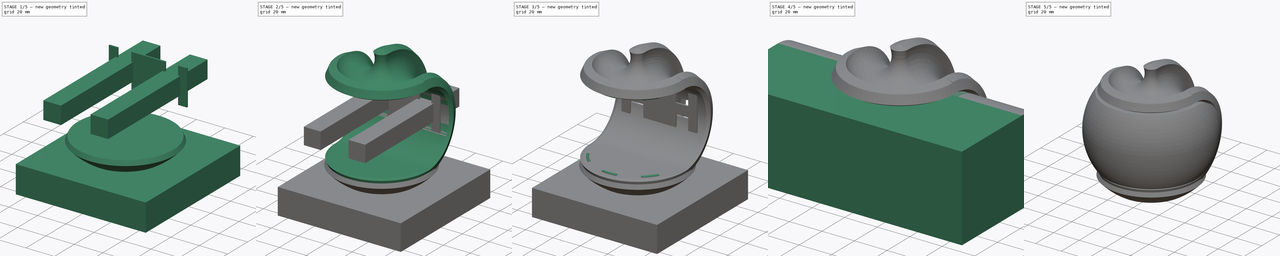
[diagram: build sequence overview — one tinted view per stage of 5, left to right]
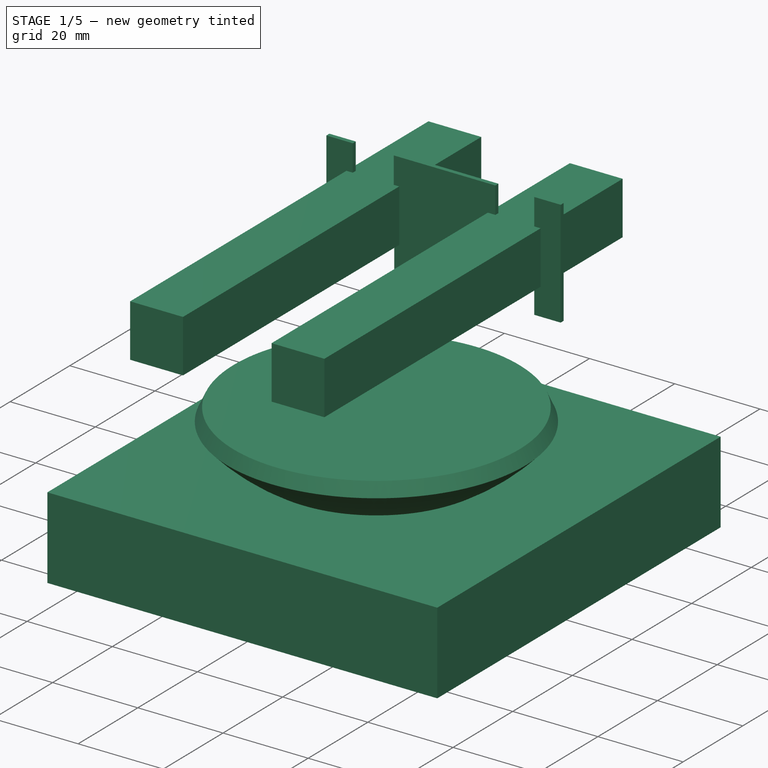
[diagram: stage 1 of 5 — iso view after this stage's code; geometry added in this stage tinted green]
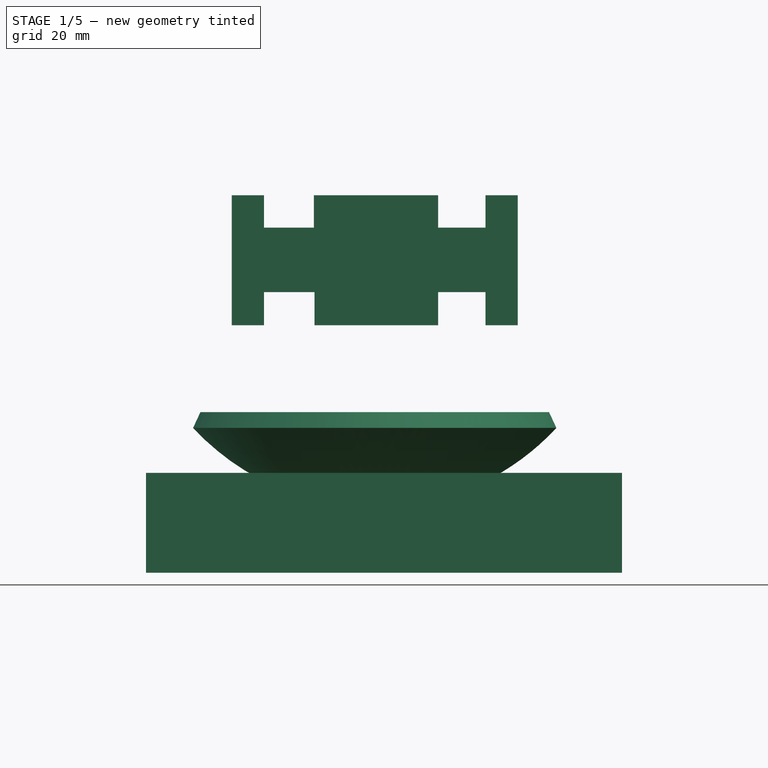
[diagram: stage 1 of 5 — front view after this stage's code; geometry added in this stage tinted green]
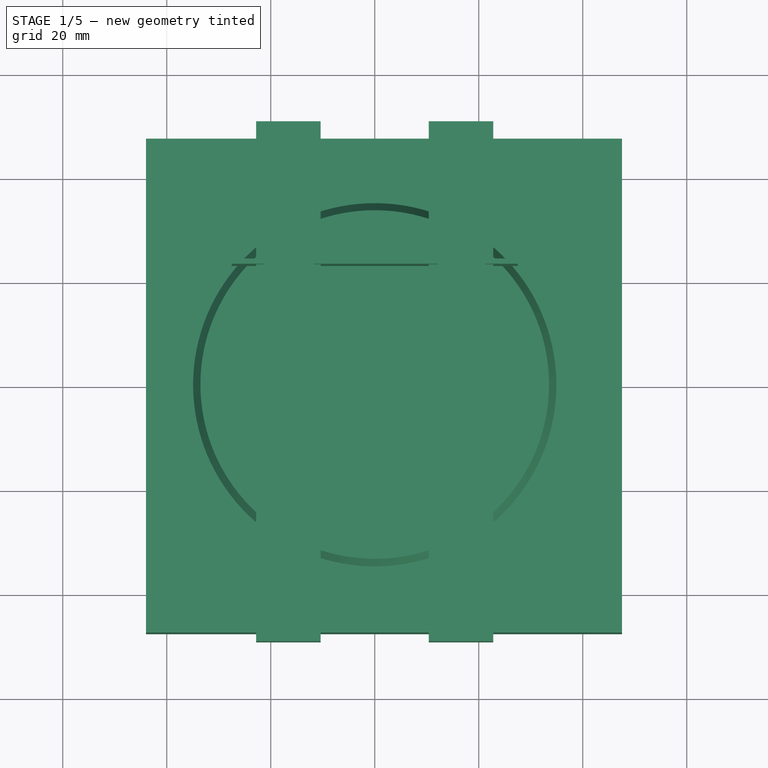
[diagram: stage 1 of 5 — top view after this stage's code; geometry added in this stage tinted green]
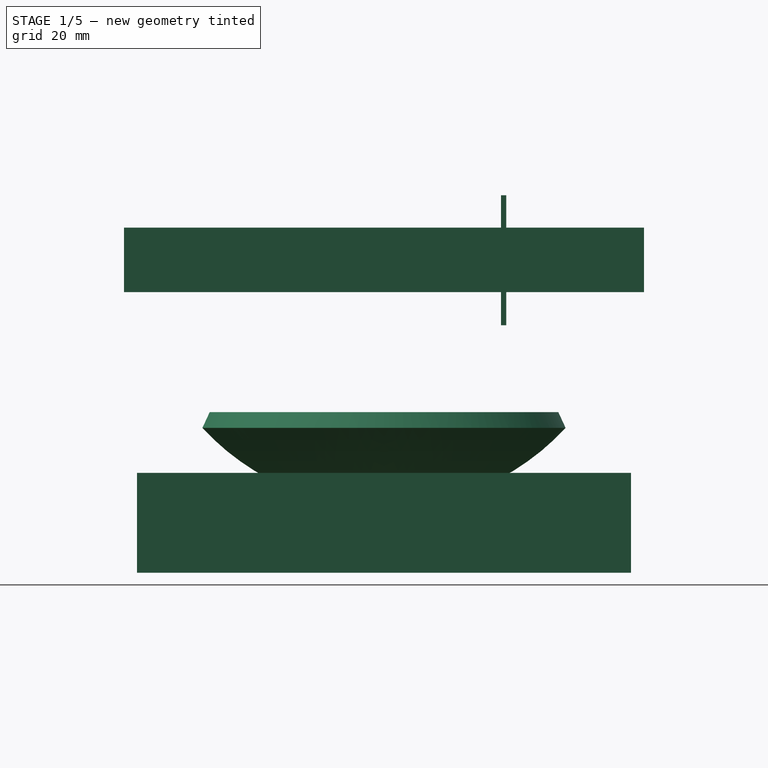
[diagram: stage 1 of 5 — right view after this stage's code; geometry added in this stage tinted green]
FCSTD DOCUMENT  (FreeCAD 0.16R6712 (Git))
Label: mouse2
License: All rights reserved
LicenseURL: http://en.wikipedia.org/wiki/All_rights_reserved
objects: Sketcher::SketchObject×18, PartDesign::Pad×11, PartDesign::Revolution×6, Part::Cut×6, Part::MultiFuse×4, PartDesign::Fillet×2, Part::MultiCommon×1, PartDesign::Chamfer×1, PartDesign::Pocket×1
note: 68 computed .brp shape members not serialized (recipe doc carries the construction recipe); baked Part::Feature solids carry a one-line shape summary decoded from their .brp

FEATURE [Sketcher::SketchObject] Sketch013
  Placement = pos=(0,0,0) rot=(1,0,0;1.5708rad)
  sketch-geometry (4):
    g0: ArcOfCircle CenterX=0 CenterY=0 CenterZ=0 NormalX=0 NormalY=0 NormalZ=1 Radius=47.583 StartAngle=4.92431 EndAngle=5.62078
    g1: LineSegment StartX=0 StartY=-29.2644 StartZ=0 EndX=0 EndY=-46.5186 EndZ=0
    g2: LineSegment StartX=0 StartY=-29.2644 StartZ=0 EndX=37.5199 EndY=-29.2644 EndZ=0
    g3: LineSegment StartX=0 StartY=-46.5186 StartZ=0 EndX=10.0084 EndY=-46.5186 EndZ=0
  constraints (8):
    c: Coincident(g0,g-1)
    c: Vertical(g1)
    c: Horizontal(g2)
    c: Horizontal(g3)
    c: Coincident(g0,g3)
    c: Coincident(g1,g3)
    c: Coincident(g0,g2)
    c: Coincident(g1,g2)
FEATURE [PartDesign::Revolution] Revolution005
  Angle = 360
  Axis = (0,0,1)
  Base = (0,0,0)
  Placement = pos=(0,0,0) rot=(1,0,0;1.5708rad)
  ReferenceAxis = -> Sketch013 [V_Axis]
  Reversed = true
  Sketch = -> Sketch013
FEATURE [PartDesign::Chamfer] Chamfer
  Base = -> Revolution005 [Edge2]
  Placement = pos=(0,0,0) rot=(1,0,0;1.5708rad)
  Size = 4
FEATURE [Sketcher::SketchObject] Sketch014
  Placement = pos=(0,0,0) rot=(1,0,0;1.5708rad)
  sketch-geometry (8):
    g0: LineSegment StartX=-22.7993 StartY=6.2 StartZ=0 EndX=-10.3993 EndY=6.2 EndZ=0
    g1: LineSegment StartX=-10.3993 StartY=6.2 StartZ=0 EndX=-10.3993 EndY=-6.2 EndZ=0
    g2: LineSegment StartX=-10.3993 StartY=-6.2 StartZ=0 EndX=-22.7993 EndY=-6.2 EndZ=0
    g3: LineSegment StartX=-22.7993 StartY=-6.2 StartZ=0 EndX=-22.7993 EndY=6.2 EndZ=0
    g4: LineSegment StartX=10.3993 StartY=6.2 StartZ=0 EndX=22.7993 EndY=6.2 EndZ=0
    g5: LineSegment StartX=22.7993 StartY=6.2 StartZ=0 EndX=22.7993 EndY=-6.2 EndZ=0
    g6: LineSegment StartX=22.7993 StartY=-6.2 StartZ=0 EndX=10.3993 EndY=-6.2 EndZ=0
    g7: LineSegment StartX=10.3993 StartY=-6.2 StartZ=0 EndX=10.3993 EndY=6.2 EndZ=0
  constraints (22):
    c: Coincident(g0,g1)
    c: Coincident(g1,g2)
    c: Coincident(g2,g3)
    c: Coincident(g3,g0)
    c: Horizontal(g0)
    c: Horizontal(g2)
    c: Vertical(g1)
    c: Vertical(g3)
    c: Coincident(g4,g5)
    c: Coincident(g5,g6)
    c: Coincident(g6,g7)
    c: Coincident(g7,g4)
    c: Horizontal(g4)
    c: Horizontal(g6)
    c: Vertical(g5)
    c: Vertical(g7)
    c: Equal(g6,g5)
    c: Equal(g1,g2)
    c: Equal(g0,g7)
    c: DistanceX(g4,g4) = 12.4
    c: Symmetric(g4,g0,g-2)
    c: Symmetric(g0,g1,g-1)
FEATURE [PartDesign::Pad] Pad008
  Length = 100
  Length2 = 100
  Midplane = true
  Placement = pos=(0,0,0) rot=(1,0,0;1.5708rad)
  Sketch = -> Sketch014
  Type = 0
FEATURE [Sketcher::SketchObject] Sketch015
  Placement = pos=(0,0,0) rot=(0.57735,0.57735,0.57735;2.0944rad)
  sketch-geometry (4):
    g0: LineSegment StartX=22.5009 StartY=12.4409 StartZ=0 EndX=23.5009 EndY=12.4409 EndZ=0
    g1: LineSegment StartX=23.5009 StartY=12.4409 StartZ=0 EndX=23.5009 EndY=-12.5591 EndZ=0
    g2: LineSegment StartX=23.5009 StartY=-12.5591 StartZ=0 EndX=22.5009 EndY=-12.5591 EndZ=0
    g3: LineSegment StartX=22.5009 StartY=-12.5591 StartZ=0 EndX=22.5009 EndY=12.4409 EndZ=0
  constraints (10):
    c: Coincident(g0,g1)
    c: Coincident(g1,g2)
    c: Coincident(g2,g3)
    c: Coincident(g3,g0)
    c: Horizontal(g0)
    c: Horizontal(g2)
    c: Vertical(g1)
    c: Vertical(g3)
    c: DistanceX(g2,g2) = 1
    c: DistanceY(g1,g0) = 25
FEATURE [PartDesign::Pad] Pad009
  Length = 55
  Length2 = 100
  Midplane = true
  Placement = pos=(0,0,0) rot=(0.57735,0.57735,0.57735;2.0944rad)
  Sketch = -> Sketch015
  Type = 0
FEATURE [Sketcher::SketchObject] Sketch016
  Placement = pos=(0,22.5009,0) rot=(0.57735,0.57735,-0.57735;2.0944rad)
  Support = -> Pad009 [Face4]
  sketch-geometry (16):
    g0: LineSegment StartX=-17.205 StartY=21.3046 StartZ=0 EndX=-3.69905 EndY=21.3046 EndZ=0
    g1: LineSegment StartX=-3.69905 StartY=21.3046 StartZ=0 EndX=-3.69905 EndY=12.1789 EndZ=0
    g2: LineSegment StartX=-3.69905 StartY=12.1789 StartZ=0 EndX=-17.205 EndY=12.1789 EndZ=0
    g3: LineSegment StartX=-17.205 StartY=12.1789 StartZ=0 EndX=-17.205 EndY=21.3046 EndZ=0
    g4: LineSegment StartX=17.205 StartY=21.3046 StartZ=0 EndX=3.69905 EndY=21.3046 EndZ=0
    g5: LineSegment StartX=3.69905 StartY=21.3046 StartZ=0 EndX=3.69905 EndY=12.1789 EndZ=0
    g6: LineSegment StartX=3.69905 StartY=12.1789 StartZ=0 EndX=17.205 EndY=12.1789 EndZ=0
    g7: LineSegment StartX=17.205 StartY=12.1789 StartZ=0 EndX=17.205 EndY=21.3046 EndZ=0
    g8: LineSegment StartX=-17.0833 StartY=-21.3046 StartZ=0 EndX=-3.57737 EndY=-21.3046 EndZ=0
    g9: LineSegment StartX=-3.57737 StartY=-21.3046 StartZ=0 EndX=-3.57737 EndY=-11.6922 EndZ=0
    g10: LineSegment StartX=-3.57737 StartY=-11.6922 StartZ=0 EndX=-17.0833 EndY=-11.6922 EndZ=0
    g11: LineSegment StartX=-17.0833 StartY=-11.6922 StartZ=0 EndX=-17.0833 EndY=-21.3046 EndZ=0
    g12: LineSegment StartX=17.205 StartY=-21.3046 StartZ=0 EndX=3.69905 EndY=-21.3046 EndZ=0
    g13: LineSegment StartX=3.69905 StartY=-21.3046 StartZ=0 EndX=3.69905 EndY=-11.5706 EndZ=0
    g14: LineSegment StartX=3.69905 StartY=-11.5706 StartZ=0 EndX=17.205 EndY=-11.5706 EndZ=0
    g15: LineSegment StartX=17.205 StartY=-11.5706 StartZ=0 EndX=17.205 EndY=-21.3046 EndZ=0
  constraints (32):
    c: Coincident(g0,g1)
    c: Coincident(g1,g2)
    c: Coincident(g2,g3)
    c: Coincident(g3,g0)
    c: Horizontal(g0)
    c: Horizontal(g2)
    c: Vertical(g1)
    c: Vertical(g3)
    c: Coincident(g4,g5)
    c: Coincident(g5,g6)
    c: Coincident(g6,g7)
    c: Coincident(g7,g4)
    c: Horizontal(g4)
    c: Horizontal(g6)
    c: Vertical(g5)
    c: Vertical(g7)
    c: Coincident(g8,g9)
    c: Coincident(g9,g10)
    c: Coincident(g10,g11)
    c: Coincident(g11,g8)
    c: Horizontal(g8)
    c: Horizontal(g10)
    c: Vertical(g9)
    c: Vertical(g11)
    c: Coincident(g12,g13)
    c: Coincident(g13,g14)
    c: Coincident(g14,g15)
    c: Coincident(g15,g12)
    c: Horizontal(g12)
    c: Horizontal(g14)
    c: Vertical(g13)
    c: Vertical(g15)
FEATURE [PartDesign::Pocket] Pocket
  Length = 5
  Placement = pos=(0,0,0) rot=(0.57735,0.57735,0.57735;2.0944rad)
  Sketch = -> Sketch016
  Type = 0
FEATURE [Sketcher::SketchObject] Sketch017
  Placement = pos=(0,0,0) rot=(-1,0,0;4.71239rad)
  sketch-geometry (4):
    g0: LineSegment StartX=-43.9816 StartY=-40.948 StartZ=0 EndX=47.5463 EndY=-40.948 EndZ=0
    g1: LineSegment StartX=47.5463 StartY=-40.948 StartZ=0 EndX=47.5463 EndY=-60.1743 EndZ=0
    g2: LineSegment StartX=47.5463 StartY=-60.1743 StartZ=0 EndX=-43.9816 EndY=-60.1743 EndZ=0
    g3: LineSegment StartX=-43.9816 StartY=-60.1743 StartZ=0 EndX=-43.9816 EndY=-40.948 EndZ=0
  constraints (8):
    c: Coincident(g0,g1)
    c: Coincident(g1,g2)
    c: Coincident(g2,g3)
    c: Coincident(g3,g0)
    c: Horizontal(g0)
    c: Horizontal(g2)
    c: Vertical(g1)
    c: Vertical(g3)
FEATURE [PartDesign::Pad] Pad010
  Length = 95
  Length2 = 100
  Midplane = true
  Placement = pos=(0,0,0) rot=(-1,0,0;4.71239rad)
  Sketch = -> Sketch017
  Type = 0
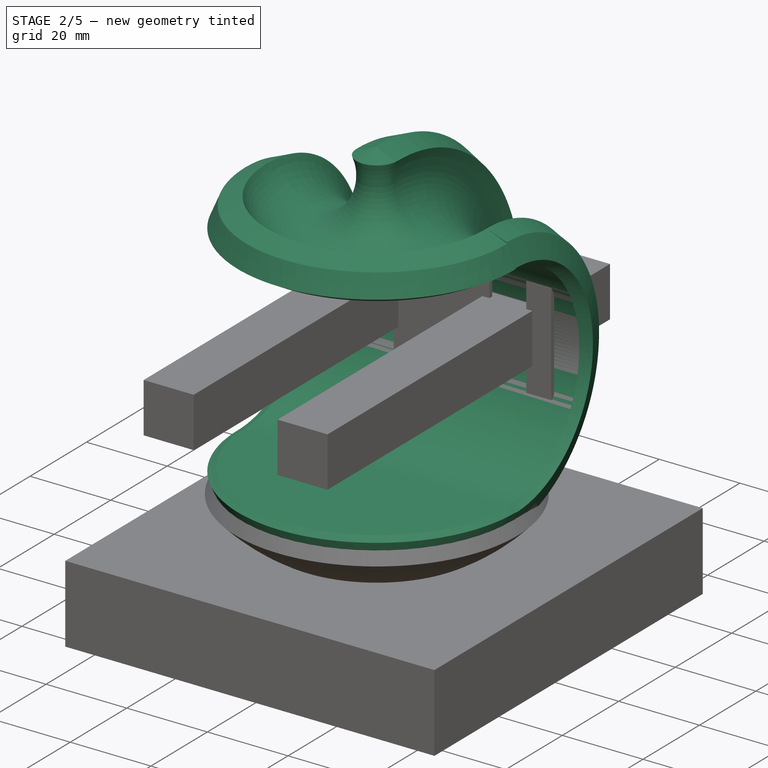
[diagram: stage 2 of 5 — iso view after this stage's code; geometry added in this stage tinted green]
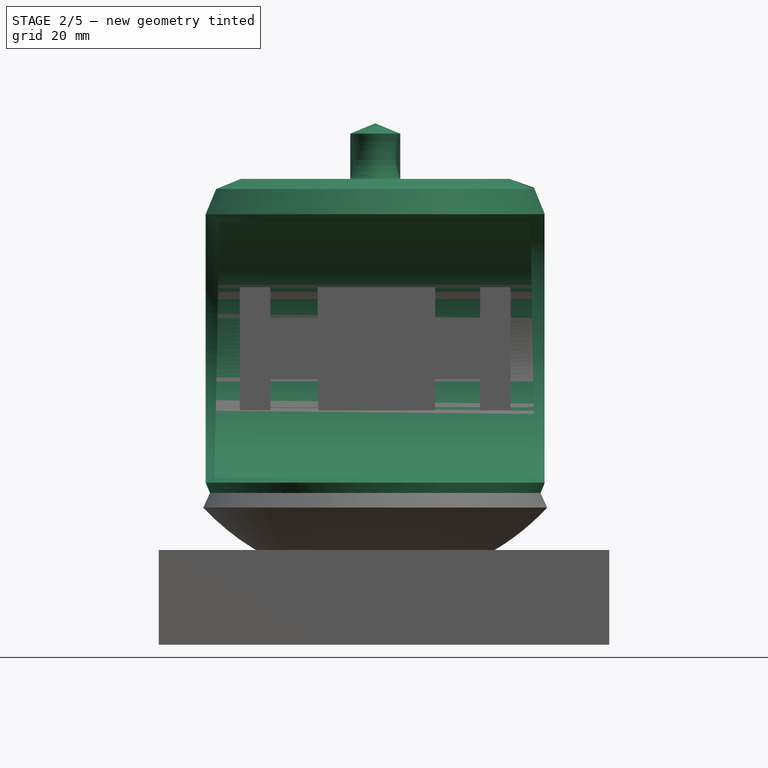
[diagram: stage 2 of 5 — front view after this stage's code; geometry added in this stage tinted green]
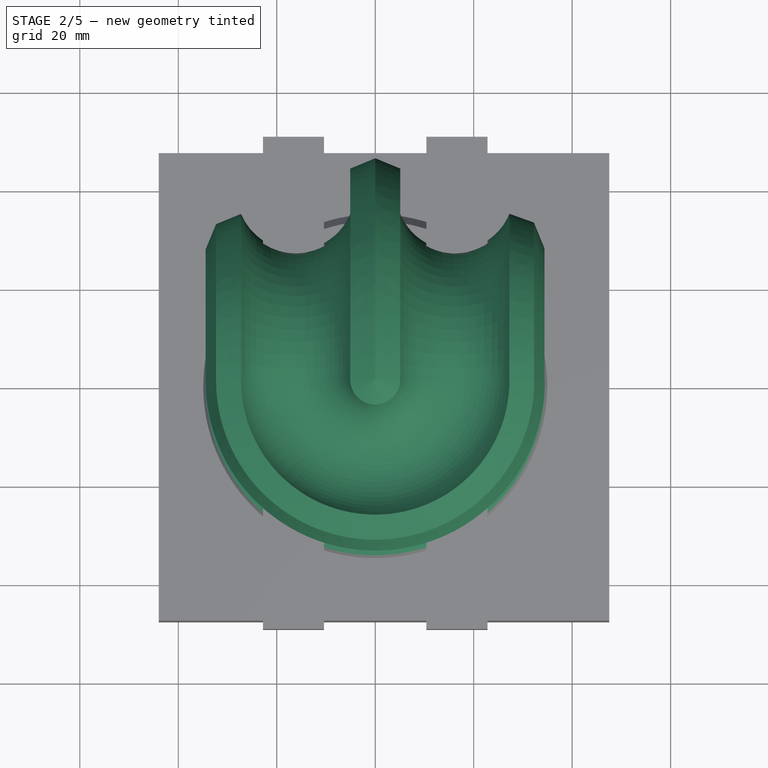
[diagram: stage 2 of 5 — top view after this stage's code; geometry added in this stage tinted green]
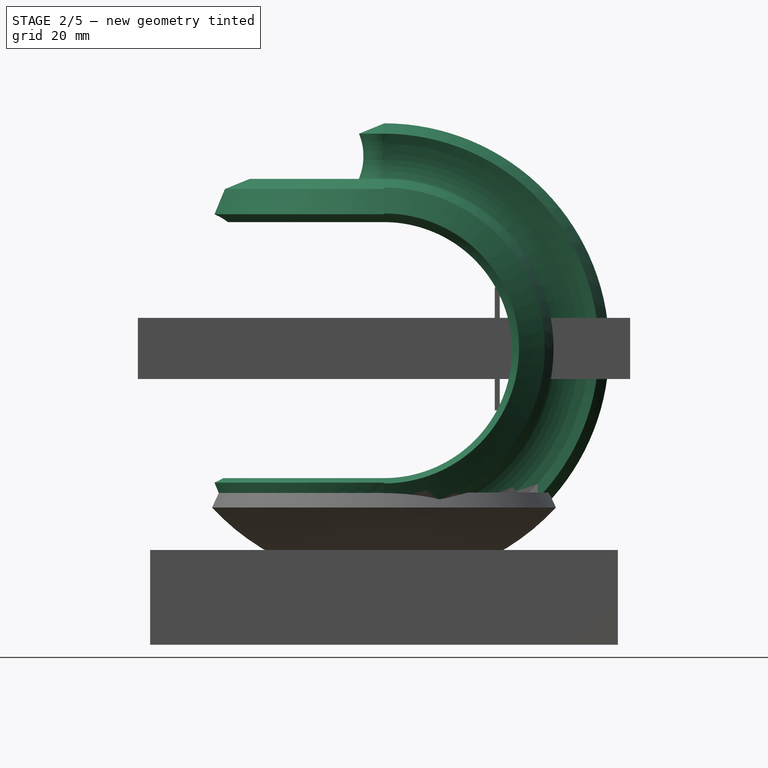
[diagram: stage 2 of 5 — right view after this stage's code; geometry added in this stage tinted green]
FEATURE [Sketcher::SketchObject] Sketch007
  Placement = pos=(0,0,0) rot=(1,0,0;1.5708rad)
  sketch-geometry (13):
    g0: LineSegment StartX=-45.7299 StartY=-9.97052e-05 StartZ=0 EndX=-43.625 EndY=-5.08134 EndZ=0
    g1: LineSegment StartX=-32.3357 StartY=-32.3328 StartZ=0 EndX=-27.2478 EndY=-34.4379 EndZ=0
    g2: ArcOfCircle CenterX=-39.0327 CenterY=16.1679 CenterZ=0 NormalX=0 NormalY=0 NormalZ=1 Radius=12 StartAngle=4.31969 EndAngle=7.46128
    g3: ArcOfCircle CenterX=-39.0328 CenterY=-16.1678 CenterZ=0 NormalX=0 NormalY=0 NormalZ=1 Radius=11.9999 StartAngle=5.10517 EndAngle=8.24668
    g4: ArcOfCircle CenterX=-16.1726 CenterY=-39.0323 CenterZ=0 NormalX=0 NormalY=0 NormalZ=1 Radius=11.9903 StartAngle=5.89182 EndAngle=9.03154
    g5: LineSegment StartX=0 StartY=45.6969 StartZ=0 EndX=-5.06214 EndY=43.6285 EndZ=0
    g6: LineSegment StartX=-32.3229 StartY=32.3788 StartZ=0 EndX=-27.2599 EndY=34.4451 EndZ=0
    g7: LineSegment StartX=-34.4405 StartY=27.2544 StartZ=0 EndX=-32.3229 EndY=32.3788 EndZ=0
    g8: LineSegment StartX=-43.6249 StartY=5.08134 StartZ=0 EndX=-45.7299 EndY=-9.97052e-05 EndZ=0
    g9: LineSegment StartX=-34.4397 StartY=-27.2539 StartZ=0 EndX=-32.3357 EndY=-32.3328 EndZ=0
    g10: LineSegment StartX=-5.0889 StartY=-43.6061 StartZ=0 EndX=0 EndY=-45.7116 EndZ=0
    g11: LineSegment StartX=0 StartY=45.6969 StartZ=0 EndX=0 EndY=-45.7116 EndZ=0
    g12: ArcOfCircle CenterX=-16.1811 CenterY=39.0854 CenterZ=0 NormalX=0 NormalY=0 NormalZ=1 Radius=12.0113 StartAngle=3.53823 EndAngle=6.67108
  constraints (24):
    c: Coincident(g7,g2)
    c: Coincident(g7,g6)
    c: Coincident(g8,g2)
    c: Coincident(g8,g0)
    c: PointOnObject(g0,g3)
    c: PointOnObject(g9,g3)
    c: Tangent(g0,g9)
    c: PointOnObject(g1,g4)
    c: PointOnObject(g10,g4)
    c: Tangent(g1,g10)
    c: Coincident(g0,g3)
    c: Coincident(g3,g9)
    c: Coincident(g1,g9)
    c: Coincident(g1,g4)
    c: Coincident(g4,g10)
    c: Coincident(g11,g5)
    c: Coincident(g11,g10)
    c: Vertical(g11)
    c: Coincident(g12,g6)
    c: Coincident(g12,g5)
    c: Equal(g6,g5)
    c: Radius(g2) = 12
    c: PointOnObject(g5,g-2)
    c: Perpendicular(g12,g5)
FEATURE [Sketcher::SketchObject] Sketch008
  Placement = pos=(0,0,0) rot=(0.57735,0.57735,-0.57735;2.0944rad)
  sketch-geometry (13):
    g0: LineSegment StartX=-45.7299 StartY=-9.97052e-05 StartZ=0 EndX=-43.625 EndY=-5.08134 EndZ=0
    g1: LineSegment StartX=-32.3357 StartY=-32.3328 StartZ=0 EndX=-27.2478 EndY=-34.4379 EndZ=0
    g2: ArcOfCircle CenterX=-39.0327 CenterY=16.1679 CenterZ=0 NormalX=0 NormalY=0 NormalZ=1 Radius=12 StartAngle=4.31969 EndAngle=7.46128
    g3: ArcOfCircle CenterX=-39.0328 CenterY=-16.1678 CenterZ=0 NormalX=0 NormalY=0 NormalZ=1 Radius=11.9999 StartAngle=5.10517 EndAngle=8.24668
    g4: ArcOfCircle CenterX=-16.1726 CenterY=-39.0323 CenterZ=0 NormalX=0 NormalY=0 NormalZ=1 Radius=11.9903 StartAngle=5.89182 EndAngle=9.03154
    g5: LineSegment StartX=0 StartY=45.7139 StartZ=0 EndX=-5.28125 EndY=43.6461 EndZ=0
    g6: LineSegment StartX=-32.6654 StartY=32.2385 StartZ=0 EndX=-27.4173 EndY=34.389 EndZ=0
    g7: LineSegment StartX=-34.4405 StartY=27.2544 StartZ=0 EndX=-32.6654 EndY=32.2385 EndZ=0
    g8: LineSegment StartX=-43.6249 StartY=5.08134 StartZ=0 EndX=-45.7299 EndY=-9.97052e-05 EndZ=0
    g9: LineSegment StartX=-34.4397 StartY=-27.2539 StartZ=0 EndX=-32.3357 EndY=-32.3328 EndZ=0
    g10: LineSegment StartX=-5.0889 StartY=-43.6061 StartZ=0 EndX=0 EndY=-45.7116 EndZ=0
    g11: LineSegment StartX=0 StartY=45.7139 StartZ=0 EndX=0 EndY=-45.7116 EndZ=0
    g12: ArcOfCircle CenterX=-16.4553 CenterY=39.2712 CenterZ=0 NormalX=0 NormalY=0 NormalZ=1 Radius=12 StartAngle=3.56059 EndAngle=6.65637
  constraints (25):
    c: Coincident(g7,g2)
    c: Coincident(g7,g6)
    c: Coincident(g8,g2)
    c: Coincident(g8,g0)
    c: PointOnObject(g0,g3)
    c: PointOnObject(g9,g3)
    c: Tangent(g0,g9)
    c: PointOnObject(g1,g4)
    c: PointOnObject(g10,g4)
    c: Tangent(g1,g10)
    c: Coincident(g0,g3)
    c: Coincident(g3,g9)
    c: Coincident(g1,g9)
    c: Coincident(g1,g4)
    c: Coincident(g4,g10)
    c: Coincident(g11,g5)
    c: Coincident(g11,g10)
    c: Vertical(g11)
    c: Coincident(g12,g6)
    c: Coincident(g12,g5)
    c: Equal(g6,g5)
    c: Radius(g12) = 12
    c: Radius(g2) = 12
    c: PointOnObject(g5,g-2)
    c: Perpendicular(g12,g5)
FEATURE [PartDesign::Revolution] Revolution003
  Angle = 180
  Axis = (1,0,0)
  Base = (0,0,0)
  Placement = pos=(0,0,0) rot=(0.57735,0.57735,-0.57735;2.0944rad)
  ReferenceAxis = -> Sketch008 [V_Axis]
  Reversed = true
  Sketch = -> Sketch008
FEATURE [Sketcher::SketchObject] Sketch009
  Placement = pos=(0,0,0) rot=(0.57735,0.57735,0.57735;2.0944rad)
  sketch-geometry (4):
    g0: LineSegment StartX=-0.0102916 StartY=25.6633 StartZ=0 EndX=-52.71 EndY=25.6633 EndZ=0
    g1: LineSegment StartX=-0.0103038 StartY=-26.3367 StartZ=0 EndX=-52.71 EndY=-26.3367 EndZ=0
    g2: LineSegment StartX=-52.71 StartY=25.6633 StartZ=0 EndX=-52.71 EndY=-26.3367 EndZ=0
    g3: ArcOfCircle CenterX=-0.0103043 CenterY=-0.33667 CenterZ=0 NormalX=0 NormalY=0 NormalZ=1 Radius=26 StartAngle=4.71239 EndAngle=7.85398
  constraints (10):
    c: Horizontal(g0)
    c: Horizontal(g1)
    c: Coincident(g2,g0)
    c: Coincident(g2,g1)
    c: Vertical(g2)
    c: Coincident(g3,g0)
    c: Coincident(g3,g1)
    c: Tangent(g3,g1)
    c: Tangent(g3,g0)
    c: Radius(g3) = 26
FEATURE [PartDesign::Pad] Pad004
  Length = 150
  Length2 = 100
  Midplane = true
  Placement = pos=(0,0,0) rot=(0.57735,0.57735,0.57735;2.0944rad)
  Sketch = -> Sketch009
  Type = 0
FEATURE [Sketcher::SketchObject] Sketch010
  Placement = pos=(0,0,0) rot=(0.57735,0.57735,0.57735;2.0944rad)
  sketch-geometry (4):
    g0: LineSegment StartX=-0.0102979 StartY=25.6633 StartZ=0 EndX=-100 EndY=25.6633 EndZ=0
    g1: LineSegment StartX=-0.0103041 StartY=-26.3367 StartZ=0 EndX=-100 EndY=-26.3367 EndZ=0
    g2: LineSegment StartX=-100 StartY=25.6633 StartZ=0 EndX=-100 EndY=-26.3367 EndZ=0
    g3: ArcOfCircle CenterX=-0.0103043 CenterY=-0.33667 CenterZ=0 NormalX=0 NormalY=0 NormalZ=1 Radius=26 StartAngle=4.71239 EndAngle=7.85398
  constraints (11):
    c: Horizontal(g0)
    c: Horizontal(g1)
    c: Coincident(g2,g0)
    c: Coincident(g2,g1)
    c: Vertical(g2)
    c: Coincident(g3,g0)
    c: Coincident(g3,g1)
    c: Tangent(g3,g1)
    c: Tangent(g3,g0)
    c: Radius(g3) = 26
    c: DistanceX(g0,g-1) = 100
FEATURE [PartDesign::Pad] Pad005
  Length = 150
  Length2 = 100
  Midplane = true
  Placement = pos=(0,0,0) rot=(0.57735,0.57735,0.57735;2.0944rad)
  Sketch = -> Sketch010
  Type = 0
FEATURE [PartDesign::Revolution] Revolution004
  Angle = 180
  Axis = (0,0,1)
  Base = (0,0,0)
  Placement = pos=(0,0,0) rot=(1,0,0;1.5708rad)
  ReferenceAxis = -> Sketch007 [V_Axis]
  Sketch = -> Sketch007
FEATURE [Part::Cut] Cut002
  Base = -> Revolution004
  Tool = -> Pad005
FEATURE [Part::Cut] Cut003
  Base = -> Revolution003
  Tool = -> Pad004
FEATURE [Part::MultiFuse] Fusion001
  Shapes = -> [Cut003,Cut002]
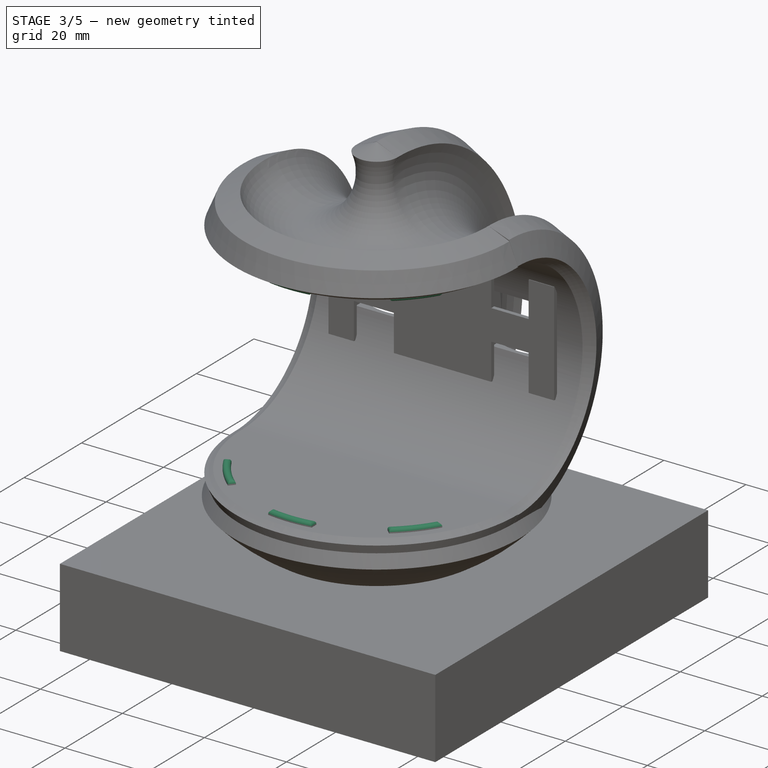
[diagram: stage 3 of 5 — iso view after this stage's code; geometry added in this stage tinted green]
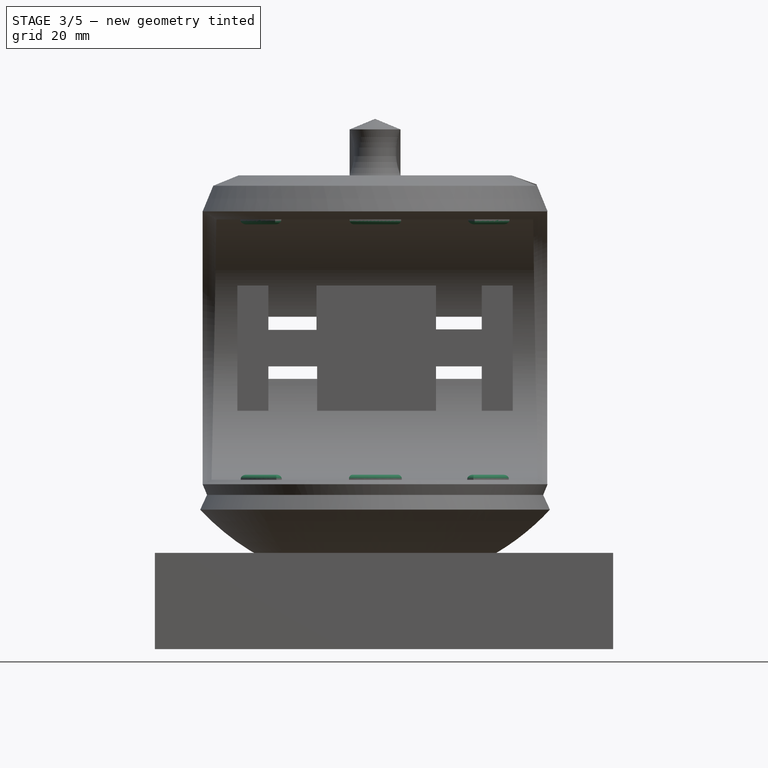
[diagram: stage 3 of 5 — front view after this stage's code; geometry added in this stage tinted green]
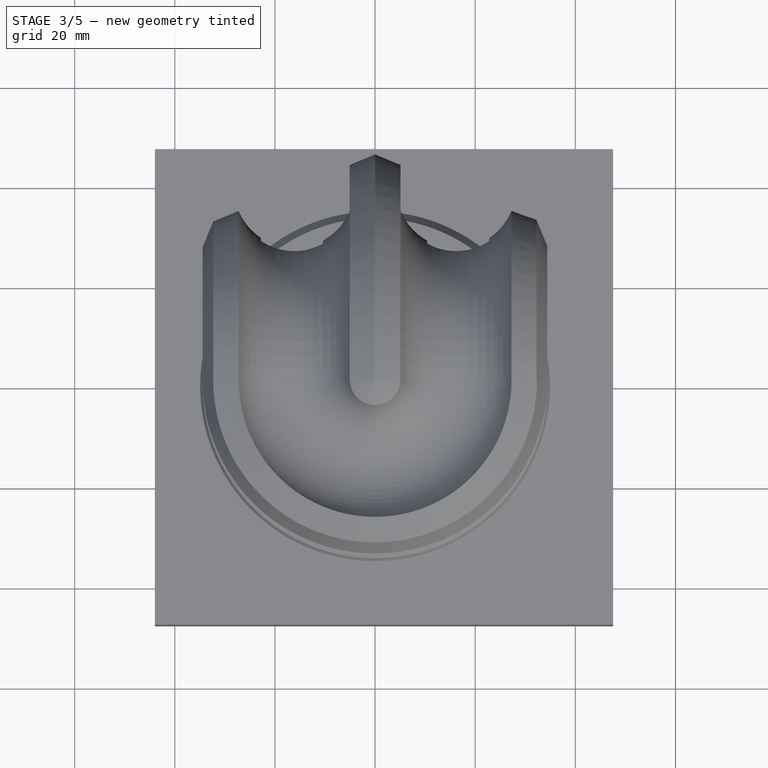
[diagram: stage 3 of 5 — top view after this stage's code; geometry added in this stage tinted green]
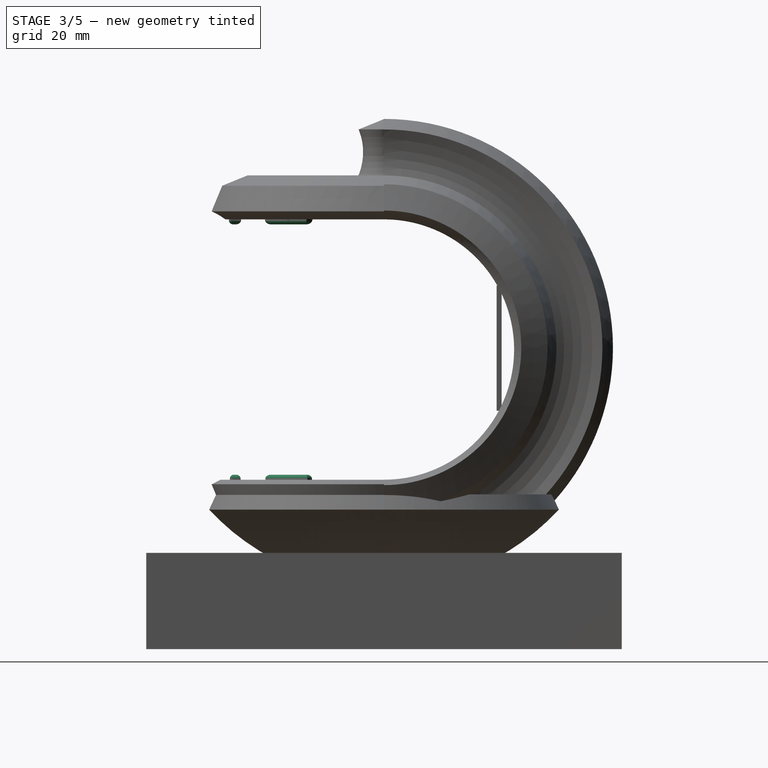
[diagram: stage 3 of 5 — right view after this stage's code; geometry added in this stage tinted green]
FEATURE [Sketcher::SketchObject] Sketch011
  Placement = pos=(0,0,25.6633) rot=(1,0,0;3.14159rad)
  Support = -> Fusion001 [Face43]
  sketch-geometry (12):
    g0: ArcOfCircle CenterX=0 CenterY=0 CenterZ=0 NormalX=0 NormalY=0 NormalZ=1 Radius=29 StartAngle=2.27316 EndAngle=2.62545
    g1: ArcOfCircle CenterX=0 CenterY=0 CenterZ=0 NormalX=0 NormalY=0 NormalZ=1 Radius=31 StartAngle=2.27017 EndAngle=2.62166
    g2: LineSegment StartX=-26.9035 StartY=15.4014 StartZ=0 EndX=-25.2221 EndY=14.3124 EndZ=0
    g3: LineSegment StartX=-19.956 StartY=23.7225 StartZ=0 EndX=-18.7348 EndY=22.1361 EndZ=0
    g4: LineSegment StartX=-5.11284 StartY=30.5755 StartZ=0 EndX=-5.11284 EndY=28.5457 EndZ=0
    g5: LineSegment StartX=26.8629 StartY=15.4721 StartZ=0 EndX=25.0785 EndY=14.5626 EndZ=0
    g6: LineSegment StartX=19.8925 StartY=23.7758 StartZ=0 EndX=18.5975 EndY=22.2516 EndZ=0
    g7: LineSegment StartX=5.2116 StartY=30.5588 StartZ=0 EndX=5.2116 EndY=28.5279 EndZ=0
    g8: ArcOfCircle CenterX=0 CenterY=0 CenterZ=0 NormalX=0 NormalY=0 NormalZ=1 Radius=31 StartAngle=1.40188 EndAngle=1.73648
    g9: ArcOfCircle CenterX=0 CenterY=0 CenterZ=0 NormalX=0 NormalY=0 NormalZ=1 Radius=29 StartAngle=1.3901 EndAngle=1.74803
    g10: ArcOfCircle CenterX=0 CenterY=0 CenterZ=0 NormalX=0 NormalY=0 NormalZ=1 Radius=29 StartAngle=0.526092 EndAngle=0.874616
    g11: ArcOfCircle CenterX=0 CenterY=0 CenterZ=0 NormalX=0 NormalY=0 NormalZ=1 Radius=31 StartAngle=0.52256 EndAngle=0.874092
  constraints (26):
    c: Coincident(g0,g-1)
    c: Coincident(g1,g-1)
    c: Radius(g1) = 31
    c: Radius(g0) = 29
    c: Vertical(g7)
    c: Vertical(g4)
    c: Coincident(g1,g3)
    c: Coincident(g8,g4)
    c: Coincident(g0,g3)
    c: Coincident(g9,g4)
    c: Equal(g1,g8)
    c: Coincident(g11,g6)
    c: Coincident(g8,g7)
    c: Coincident(g1,g8)
    c: Equal(g0,g9)
    c: Coincident(g10,g6)
    c: Coincident(g9,g7)
    c: Coincident(g0,g9)
    c: Equal(g0,g10)
    c: Coincident(g0,g2)
    c: Coincident(g10,g5)
    c: Coincident(g0,g10)
    c: Equal(g1,g11)
    c: Coincident(g1,g2)
    c: Coincident(g11,g5)
    c: Coincident(g1,g11)
FEATURE [PartDesign::Pad] Pad006
  Length = 1
  Length2 = 100
  Sketch = -> Sketch011
  Type = 0
FEATURE [Sketcher::SketchObject] Sketch012
  Placement = pos=(0,0,-26.3367) rot=(0,0,1;0rad)
  Support = -> Pad006 [Face39]
  sketch-geometry (12):
    g0: ArcOfCircle CenterX=0 CenterY=0 CenterZ=0 NormalX=0 NormalY=0 NormalZ=1 Radius=29.1198 StartAngle=3.65801 EndAngle=4.01755
    g1: ArcOfCircle CenterX=0 CenterY=0 CenterZ=0 NormalX=0 NormalY=0 NormalZ=1 Radius=30.7827 StartAngle=3.65422 EndAngle=4.01778
    g2: LineSegment StartX=-5.21595 StartY=-28.6489 StartZ=0 EndX=-5.21595 EndY=-30.3376 EndZ=0
    g3: LineSegment StartX=5.33457 StartY=-28.627 StartZ=0 EndX=5.33457 EndY=-30.317 EndZ=0
    g4: LineSegment StartX=18.4171 StartY=-22.556 StartZ=0 EndX=19.644 EndY=-23.7 EndZ=0
    g5: LineSegment StartX=25.1678 StartY=-14.6473 StartZ=0 EndX=26.7097 EndY=-15.3026 EndZ=0
    g6: LineSegment StartX=-18.6443 StartY=-22.3686 StartZ=0 EndX=-19.7035 EndY=-23.6506 EndZ=0
    g7: LineSegment StartX=-25.3223 StartY=-14.3785 StartZ=0 EndX=-26.8259 EndY=-15.098 EndZ=0
    g8: ArcOfCircle CenterX=0 CenterY=0 CenterZ=0 NormalX=0 NormalY=0 NormalZ=1 Radius=29.1198 StartAngle=4.5323 EndAngle=4.89662
    g9: ArcOfCircle CenterX=0 CenterY=0 CenterZ=0 NormalX=0 NormalY=0 NormalZ=1 Radius=30.7827 StartAngle=4.54212 EndAngle=4.88657
    g10: ArcOfCircle CenterX=0 CenterY=0 CenterZ=0 NormalX=0 NormalY=0 NormalZ=1 Radius=29.1198 StartAngle=5.39711 EndAngle=5.75612
    g11: ArcOfCircle CenterX=0 CenterY=0 CenterZ=0 NormalX=0 NormalY=0 NormalZ=1 Radius=30.7827 StartAngle=5.40448 EndAngle=5.76291
  constraints (28):
    c: Coincident(g0,g-1)
    c: Coincident(g1,g-1)
    c: Vertical(g2)
    c: PointOnObject(g3,g0)
    c: PointOnObject(g3,g1)
    c: Vertical(g3)
    c: PointOnObject(g4,g0)
    c: PointOnObject(g4,g1)
    c: Coincident(g1,g7)
    c: Coincident(g11,g5)
    c: Coincident(g0,g7)
    c: Coincident(g10,g5)
    c: Equal(g0,g8)
    c: Coincident(g0,g6)
    c: Coincident(g8,g2)
    c: Coincident(g0,g8)
    c: Equal(g1,g9)
    c: Coincident(g1,g6)
    c: Coincident(g9,g2)
    c: Coincident(g1,g9)
    c: Equal(g8,g10)
    c: PointOnObject(g8,g3)
    c: PointOnObject(g10,g4)
    c: Coincident(g8,g10)
    c: Equal(g9,g11)
    c: PointOnObject(g9,g3)
    c: PointOnObject(g11,g4)
    c: Coincident(g9,g11)
FEATURE [PartDesign::Pad] Pad007
  Length = 1
  Length2 = 100
  Sketch = -> Sketch012
  Type = 0
FEATURE [PartDesign::Fillet] Fillet
  Base = -> Pad007 [Edge165,Edge164,Edge161,Edge159,Edge173,Edge167,Edge170,Edge172,Edge181,Edge180,Edge177,Edge175]
  Radius = 0.9
FEATURE [PartDesign::Fillet] Fillet001
  Base = -> Fillet [Edge181,Edge179,Edge185,Edge183,Edge197,Edge195,Edge201,Edge199,Edge193,Edge187,Edge190,Edge192]
  Radius = 0.8
FEATURE [Part::MultiFuse] Fusion002
  Shapes = -> [Fillet001,Chamfer]
FEATURE [Part::Cut] Cut004
  Base = -> Fusion002
  Tool = -> Pad008
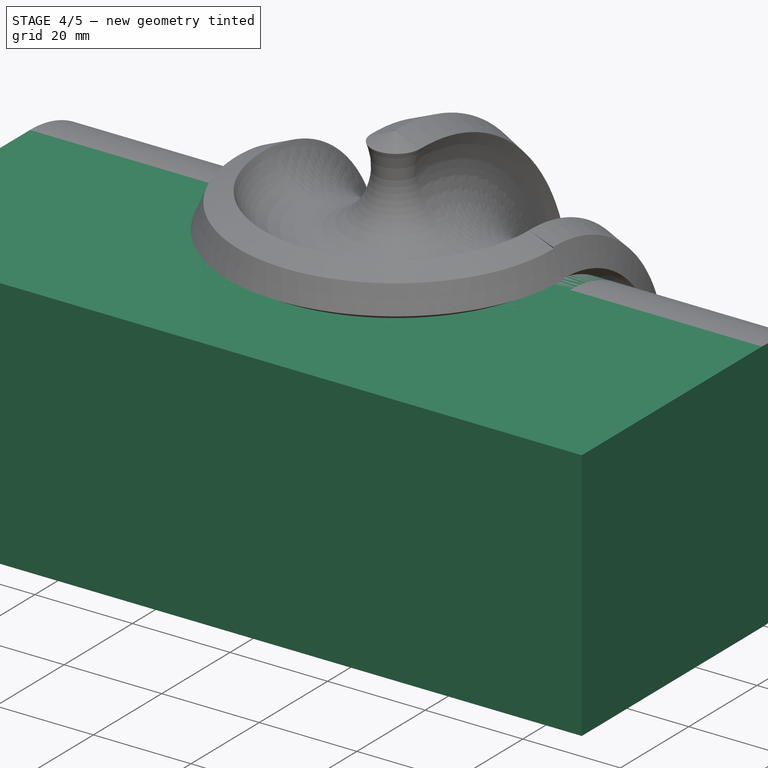
[diagram: stage 4 of 5 — iso view after this stage's code; geometry added in this stage tinted green]
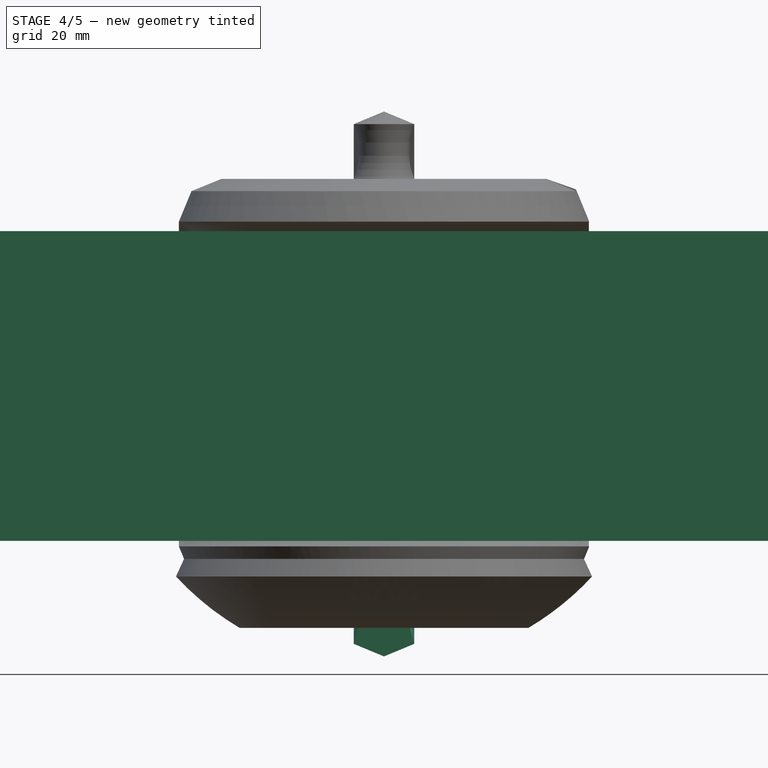
[diagram: stage 4 of 5 — front view after this stage's code; geometry added in this stage tinted green]
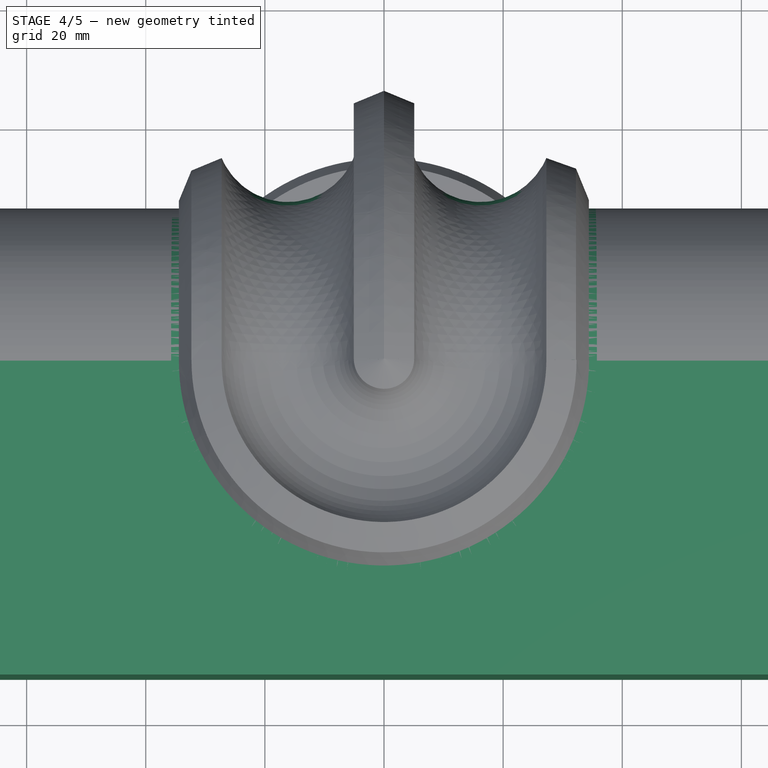
[diagram: stage 4 of 5 — top view after this stage's code; geometry added in this stage tinted green]
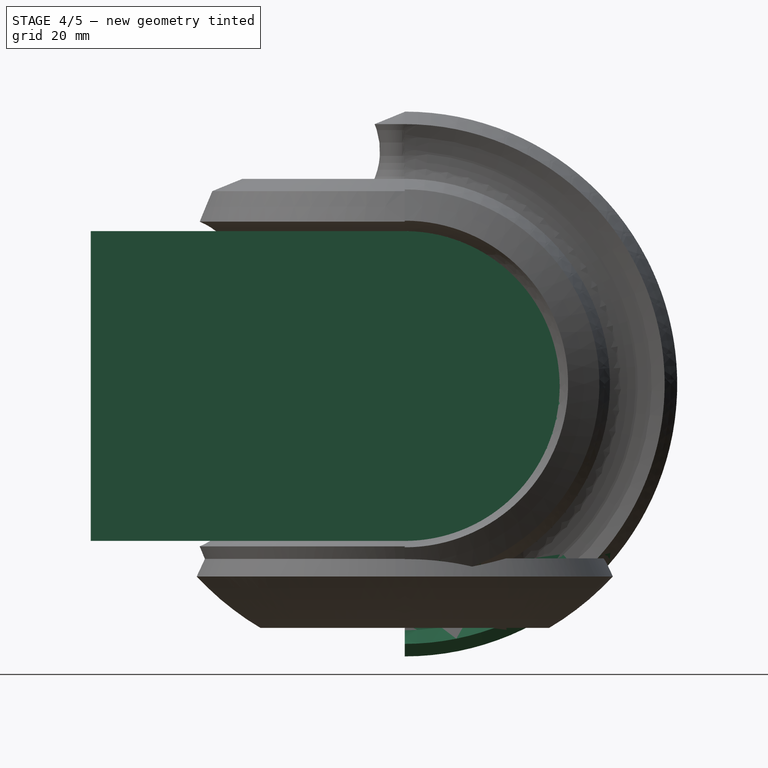
[diagram: stage 4 of 5 — right view after this stage's code; geometry added in this stage tinted green]
FEATURE [Sketcher::SketchObject] Sketch
  Placement = pos=(0,0,0) rot=(1,0,0;1.5708rad)
  sketch-geometry (13):
    g0: LineSegment StartX=-45.7299 StartY=-9.97052e-05 StartZ=0 EndX=-43.625 EndY=-5.08134 EndZ=0
    g1: LineSegment StartX=-32.3357 StartY=-32.3328 StartZ=0 EndX=-27.2478 EndY=-34.4379 EndZ=0
    g2: ArcOfCircle CenterX=-39.0327 CenterY=16.1679 CenterZ=0 NormalX=0 NormalY=0 NormalZ=1 Radius=12 StartAngle=4.31969 EndAngle=7.46128
    g3: ArcOfCircle CenterX=-39.0328 CenterY=-16.1678 CenterZ=0 NormalX=0 NormalY=0 NormalZ=1 Radius=11.9999 StartAngle=5.10517 EndAngle=8.24668
    g4: ArcOfCircle CenterX=-16.1726 CenterY=-39.0323 CenterZ=0 NormalX=0 NormalY=0 NormalZ=1 Radius=11.9903 StartAngle=5.89182 EndAngle=9.03154
    g5: LineSegment StartX=0 StartY=45.6969 StartZ=0 EndX=-5.06214 EndY=43.6285 EndZ=0
    g6: LineSegment StartX=-32.3229 StartY=32.3788 StartZ=0 EndX=-27.2599 EndY=34.4451 EndZ=0
    g7: LineSegment StartX=-34.4405 StartY=27.2544 StartZ=0 EndX=-32.3229 EndY=32.3788 EndZ=0
    g8: LineSegment StartX=-43.6249 StartY=5.08134 StartZ=0 EndX=-45.7299 EndY=-9.97052e-05 EndZ=0
    g9: LineSegment StartX=-34.4397 StartY=-27.2539 StartZ=0 EndX=-32.3357 EndY=-32.3328 EndZ=0
    g10: LineSegment StartX=-5.0889 StartY=-43.6061 StartZ=0 EndX=0 EndY=-45.7116 EndZ=0
    g11: LineSegment StartX=0 StartY=45.6969 StartZ=0 EndX=0 EndY=-45.7116 EndZ=0
    g12: ArcOfCircle CenterX=-16.1811 CenterY=39.0854 CenterZ=0 NormalX=0 NormalY=0 NormalZ=1 Radius=12.0113 StartAngle=3.53823 EndAngle=6.67108
  constraints (24):
    c: Coincident(g7,g2)
    c: Coincident(g7,g6)
    c: Coincident(g8,g2)
    c: Coincident(g8,g0)
    c: PointOnObject(g0,g3)
    c: PointOnObject(g9,g3)
    c: Tangent(g0,g9)
    c: PointOnObject(g1,g4)
    c: PointOnObject(g10,g4)
    c: Tangent(g1,g10)
    c: Coincident(g0,g3)
    c: Coincident(g3,g9)
    c: Coincident(g1,g9)
    c: Coincident(g1,g4)
    c: Coincident(g4,g10)
    c: Coincident(g11,g5)
    c: Coincident(g11,g10)
    c: Vertical(g11)
    c: Coincident(g12,g6)
    c: Coincident(g12,g5)
    c: Equal(g6,g5)
    c: Radius(g2) = 12
    c: PointOnObject(g5,g-2)
    c: Perpendicular(g12,g5)
FEATURE [Sketcher::SketchObject] Sketch001
  Placement = pos=(0,0,0) rot=(0.57735,0.57735,-0.57735;2.0944rad)
  sketch-geometry (13):
    g0: LineSegment StartX=-45.7299 StartY=-9.97052e-05 StartZ=0 EndX=-43.625 EndY=-5.08134 EndZ=0
    g1: LineSegment StartX=-32.3357 StartY=-32.3328 StartZ=0 EndX=-27.2478 EndY=-34.4379 EndZ=0
    g2: ArcOfCircle CenterX=-39.0327 CenterY=16.1679 CenterZ=0 NormalX=0 NormalY=0 NormalZ=1 Radius=12 StartAngle=4.31969 EndAngle=7.46128
    g3: ArcOfCircle CenterX=-39.0328 CenterY=-16.1678 CenterZ=0 NormalX=0 NormalY=0 NormalZ=1 Radius=11.9999 StartAngle=5.10517 EndAngle=8.24668
    g4: ArcOfCircle CenterX=-16.1726 CenterY=-39.0323 CenterZ=0 NormalX=0 NormalY=0 NormalZ=1 Radius=11.9903 StartAngle=5.89182 EndAngle=9.03154
    g5: LineSegment StartX=0 StartY=45.7139 StartZ=0 EndX=-5.28125 EndY=43.6461 EndZ=0
    g6: LineSegment StartX=-32.6654 StartY=32.2385 StartZ=0 EndX=-27.4173 EndY=34.389 EndZ=0
    g7: LineSegment StartX=-34.4405 StartY=27.2544 StartZ=0 EndX=-32.6654 EndY=32.2385 EndZ=0
    g8: LineSegment StartX=-43.6249 StartY=5.08134 StartZ=0 EndX=-45.7299 EndY=-9.97052e-05 EndZ=0
    g9: LineSegment StartX=-34.4397 StartY=-27.2539 StartZ=0 EndX=-32.3357 EndY=-32.3328 EndZ=0
    g10: LineSegment StartX=-5.0889 StartY=-43.6061 StartZ=0 EndX=0 EndY=-45.7116 EndZ=0
    g11: LineSegment StartX=0 StartY=45.7139 StartZ=0 EndX=0 EndY=-45.7116 EndZ=0
    g12: ArcOfCircle CenterX=-16.4553 CenterY=39.2712 CenterZ=0 NormalX=0 NormalY=0 NormalZ=1 Radius=12 StartAngle=3.56059 EndAngle=6.65637
  constraints (25):
    c: Coincident(g7,g2)
    c: Coincident(g7,g6)
    c: Coincident(g8,g2)
    c: Coincident(g8,g0)
    c: PointOnObject(g0,g3)
    c: PointOnObject(g9,g3)
    c: Tangent(g0,g9)
    c: PointOnObject(g1,g4)
    c: PointOnObject(g10,g4)
    c: Tangent(g1,g10)
    c: Coincident(g0,g3)
    c: Coincident(g3,g9)
    c: Coincident(g1,g9)
    c: Coincident(g1,g4)
    c: Coincident(g4,g10)
    c: Coincident(g11,g5)
    c: Coincident(g11,g10)
    c: Vertical(g11)
    c: Coincident(g12,g6)
    c: Coincident(g12,g5)
    c: Equal(g6,g5)
    c: Radius(g12) = 12
    c: Radius(g2) = 12
    c: PointOnObject(g5,g-2)
    c: Perpendicular(g12,g5)
FEATURE [PartDesign::Revolution] Revolution001
  Angle = 180
  Axis = (1,0,0)
  Base = (0,0,0)
  Placement = pos=(0,0,0) rot=(0.57735,0.57735,-0.57735;2.0944rad)
  ReferenceAxis = -> Sketch001 [V_Axis]
  Reversed = true
  Sketch = -> Sketch001
FEATURE [Sketcher::SketchObject] Sketch002
  Placement = pos=(0,0,0) rot=(0.57735,0.57735,0.57735;2.0944rad)
  sketch-geometry (4):
    g0: LineSegment StartX=-0.0102916 StartY=25.6633 StartZ=0 EndX=-52.71 EndY=25.6633 EndZ=0
    g1: LineSegment StartX=-0.0103038 StartY=-26.3367 StartZ=0 EndX=-52.71 EndY=-26.3367 EndZ=0
    g2: LineSegment StartX=-52.71 StartY=25.6633 StartZ=0 EndX=-52.71 EndY=-26.3367 EndZ=0
    g3: ArcOfCircle CenterX=-0.0103043 CenterY=-0.33667 CenterZ=0 NormalX=0 NormalY=0 NormalZ=1 Radius=26 StartAngle=4.71239 EndAngle=7.85398
  constraints (10):
    c: Horizontal(g0)
    c: Horizontal(g1)
    c: Coincident(g2,g0)
    c: Coincident(g2,g1)
    c: Vertical(g2)
    c: Coincident(g3,g0)
    c: Coincident(g3,g1)
    c: Tangent(g3,g1)
    c: Tangent(g3,g0)
    c: Radius(g3) = 26
FEATURE [PartDesign::Pad] Pad
  Length = 150
  Length2 = 100
  Midplane = true
  Placement = pos=(0,0,0) rot=(0.57735,0.57735,0.57735;2.0944rad)
  Sketch = -> Sketch002
  Type = 0
FEATURE [Sketcher::SketchObject] Sketch005
  Placement = pos=(0,0,0) rot=(0.57735,0.57735,0.57735;2.0944rad)
  sketch-geometry (4):
    g0: LineSegment StartX=-0.0102979 StartY=25.6633 StartZ=0 EndX=-100 EndY=25.6633 EndZ=0
    g1: LineSegment StartX=-0.0103041 StartY=-26.3367 StartZ=0 EndX=-100 EndY=-26.3367 EndZ=0
    g2: LineSegment StartX=-100 StartY=25.6633 StartZ=0 EndX=-100 EndY=-26.3367 EndZ=0
    g3: ArcOfCircle CenterX=-0.0103043 CenterY=-0.33667 CenterZ=0 NormalX=0 NormalY=0 NormalZ=1 Radius=26 StartAngle=4.71239 EndAngle=7.85398
  constraints (11):
    c: Horizontal(g0)
    c: Horizontal(g1)
    c: Coincident(g2,g0)
    c: Coincident(g2,g1)
    c: Vertical(g2)
    c: Coincident(g3,g0)
    c: Coincident(g3,g1)
    c: Tangent(g3,g1)
    c: Tangent(g3,g0)
    c: Radius(g3) = 26
    c: DistanceX(g0,g-1) = 100
FEATURE [PartDesign::Pad] Pad003
  Length = 150
  Length2 = 100
  Midplane = true
  Placement = pos=(0,0,0) rot=(0.57735,0.57735,0.57735;2.0944rad)
  Sketch = -> Sketch005
  Type = 0
FEATURE [Sketcher::SketchObject] Sketch006
  Placement = pos=(0,0,0) rot=(1,0,0;1.5708rad)
  sketch-geometry (4):
    g0: ArcOfCircle CenterX=0 CenterY=0 CenterZ=0 NormalX=0 NormalY=0 NormalZ=1 Radius=37 StartAngle=1.5708 EndAngle=4.71239
    g1: ArcOfCircle CenterX=0 CenterY=0 CenterZ=0 NormalX=0 NormalY=0 NormalZ=1 Radius=44 StartAngle=1.5708 EndAngle=4.71239
    g2: LineSegment StartX=-5.40682e-06 StartY=37 StartZ=0 EndX=-5.40682e-06 EndY=44 EndZ=0
    g3: LineSegment StartX=0 StartY=-37 StartZ=0 EndX=0 EndY=-44 EndZ=0
  constraints (11):
    c: Coincident(g0,g-1)
    c: Coincident(g1,g-1)
    c: Radius(g1) = 44
    c: Coincident(g2,g0)
    c: Vertical(g2)
    c: Coincident(g3,g0)
    c: Vertical(g3)
    c: Coincident(g1,g2)
    c: Coincident(g1,g3)
    c: Radius(g0) = 37
    c: PointOnObject(g0,g-2)
FEATURE [PartDesign::Revolution] Revolution002
  Angle = 360
  Axis = (0,0,1)
  Base = (0,0,0)
  Placement = pos=(0,0,0) rot=(1,0,0;1.5708rad)
  ReferenceAxis = -> Sketch006 [V_Axis]
  Sketch = -> Sketch006
FEATURE [Part::MultiCommon] Common
  Shapes = -> [Pad003,Revolution002]
FEATURE [Part::MultiFuse] Fusion003
  Shapes = -> [Cut004,Pocket]
FEATURE [Part::Cut] Cut005
  Base = -> Fusion003
  Tool = -> Pad010
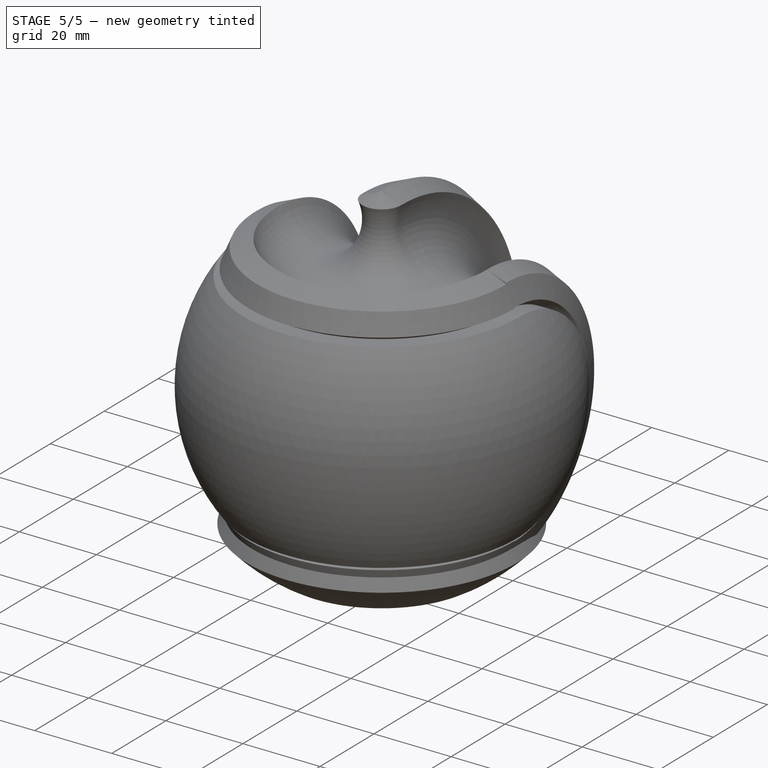
[diagram: stage 5 of 5 — iso view after this stage's code; geometry added in this stage tinted green]
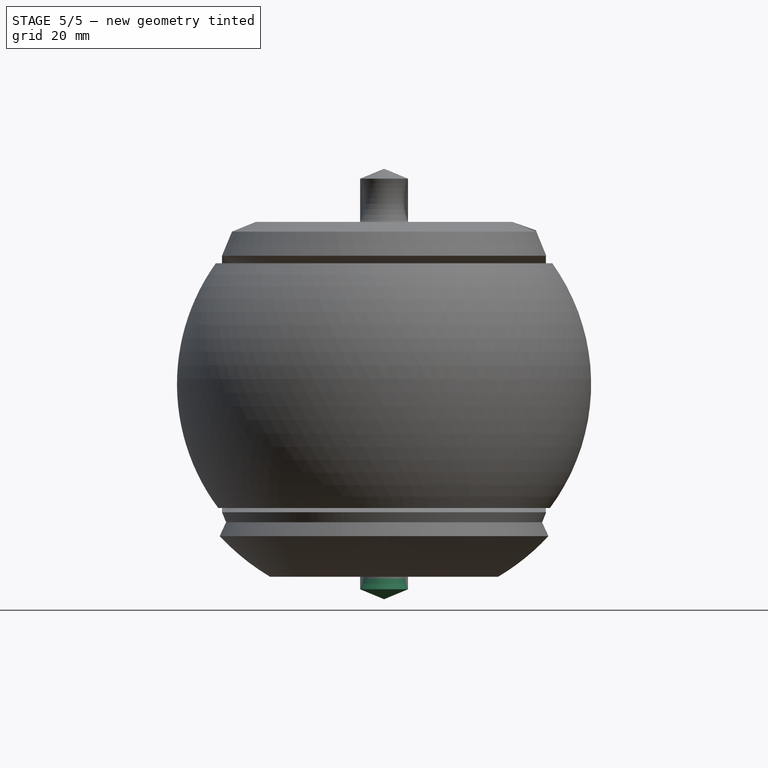
[diagram: stage 5 of 5 — front view after this stage's code; geometry added in this stage tinted green]
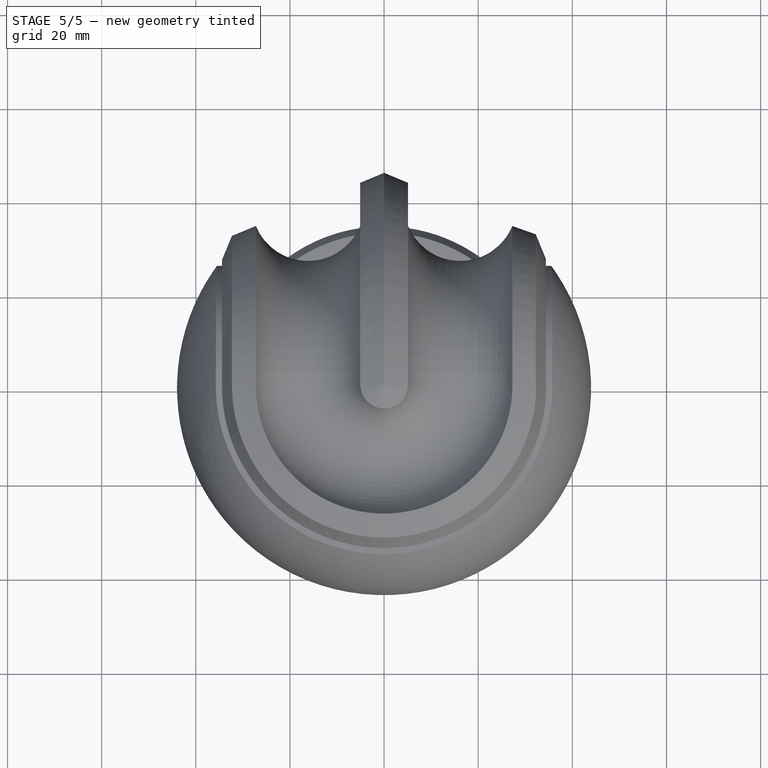
[diagram: stage 5 of 5 — top view after this stage's code; geometry added in this stage tinted green]
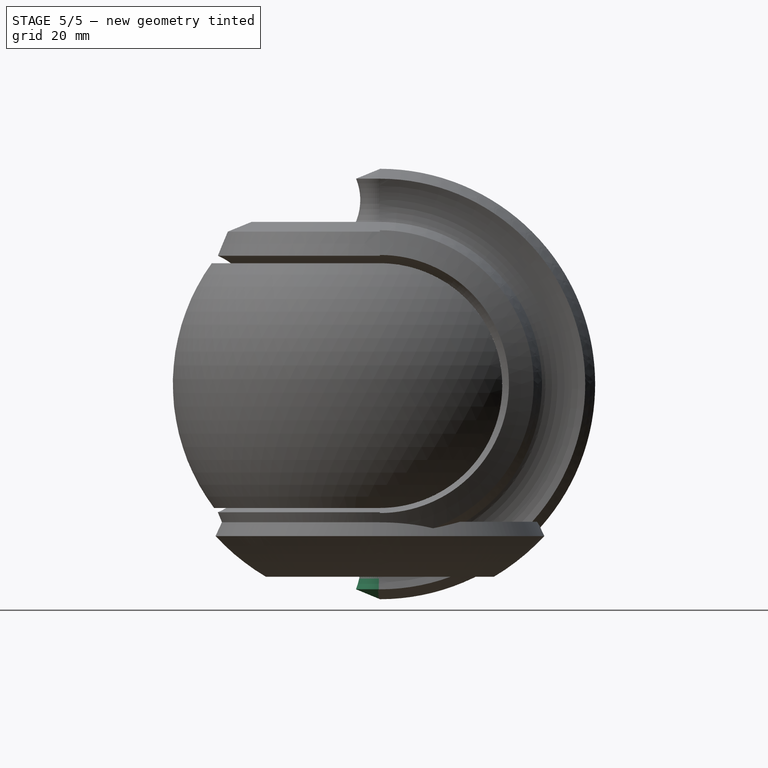
[diagram: stage 5 of 5 — right view after this stage's code; geometry added in this stage tinted green]
FEATURE [Sketcher::SketchObject] Sketch003
  Placement = pos=(0,0,0) rot=(0.57735,0.57735,0.57735;2.0944rad)
  sketch-geometry (4):
    g0: LineSegment StartX=-0.0102979 StartY=25.6633 StartZ=0 EndX=-100 EndY=25.6633 EndZ=0
    g1: LineSegment StartX=-0.0103041 StartY=-26.3367 StartZ=0 EndX=-100 EndY=-26.3367 EndZ=0
    g2: LineSegment StartX=-100 StartY=25.6633 StartZ=0 EndX=-100 EndY=-26.3367 EndZ=0
    g3: ArcOfCircle CenterX=-0.0103043 CenterY=-0.33667 CenterZ=0 NormalX=0 NormalY=0 NormalZ=1 Radius=26 StartAngle=4.71239 EndAngle=7.85398
  constraints (11):
    c: Horizontal(g0)
    c: Horizontal(g1)
    c: Coincident(g2,g0)
    c: Coincident(g2,g1)
    c: Vertical(g2)
    c: Coincident(g3,g0)
    c: Coincident(g3,g1)
    c: Tangent(g3,g1)
    c: Tangent(g3,g0)
    c: Radius(g3) = 26
    c: DistanceX(g0,g-1) = 100
FEATURE [PartDesign::Pad] Pad001
  Length = 150
  Length2 = 100
  Midplane = true
  Placement = pos=(0,0,0) rot=(0.57735,0.57735,0.57735;2.0944rad)
  Sketch = -> Sketch003
  Type = 0
FEATURE [PartDesign::Revolution] Revolution
  Angle = 180
  Axis = (0,0,1)
  Base = (0,0,0)
  Placement = pos=(0,0,0) rot=(1,0,0;1.5708rad)
  ReferenceAxis = -> Sketch [V_Axis]
  Sketch = -> Sketch
FEATURE [Part::Cut] Cut
  Base = -> Revolution
  Tool = -> Pad001
FEATURE [Part::Cut] Cut001
  Base = -> Revolution001
  Tool = -> Pad
FEATURE [Part::MultiFuse] Fusion
  Shapes = -> [Cut001,Cut]
FEATURE [Sketcher::SketchObject] Sketch004
  Placement = pos=(0,0,25.6633) rot=(1,0,0;3.14159rad)
  Support = -> Fusion [Face43]
  sketch-geometry (12):
    g0: ArcOfCircle CenterX=0 CenterY=0 CenterZ=0 NormalX=0 NormalY=0 NormalZ=1 Radius=29 StartAngle=2.27316 EndAngle=2.62545
    g1: ArcOfCircle CenterX=0 CenterY=0 CenterZ=0 NormalX=0 NormalY=0 NormalZ=1 Radius=31 StartAngle=2.27017 EndAngle=2.62166
    g2: LineSegment StartX=-26.9035 StartY=15.4014 StartZ=0 EndX=-25.2221 EndY=14.3124 EndZ=0
    g3: LineSegment StartX=-19.956 StartY=23.7225 StartZ=0 EndX=-18.7348 EndY=22.1361 EndZ=0
    g4: LineSegment StartX=-5.11284 StartY=30.5755 StartZ=0 EndX=-5.11284 EndY=28.5457 EndZ=0
    g5: LineSegment StartX=26.8629 StartY=15.4721 StartZ=0 EndX=25.0785 EndY=14.5626 EndZ=0
    g6: LineSegment StartX=19.8925 StartY=23.7758 StartZ=0 EndX=18.5975 EndY=22.2516 EndZ=0
    g7: LineSegment StartX=5.2116 StartY=30.5588 StartZ=0 EndX=5.2116 EndY=28.5279 EndZ=0
    g8: ArcOfCircle CenterX=0 CenterY=0 CenterZ=0 NormalX=0 NormalY=0 NormalZ=1 Radius=31 StartAngle=1.40188 EndAngle=1.73648
    g9: ArcOfCircle CenterX=0 CenterY=0 CenterZ=0 NormalX=0 NormalY=0 NormalZ=1 Radius=29 StartAngle=1.3901 EndAngle=1.74803
    g10: ArcOfCircle CenterX=0 CenterY=0 CenterZ=0 NormalX=0 NormalY=0 NormalZ=1 Radius=29 StartAngle=0.526092 EndAngle=0.874616
    g11: ArcOfCircle CenterX=0 CenterY=0 CenterZ=0 NormalX=0 NormalY=0 NormalZ=1 Radius=31 StartAngle=0.52256 EndAngle=0.874092
  constraints (26):
    c: Coincident(g0,g-1)
    c: Coincident(g1,g-1)
    c: Radius(g1) = 31
    c: Radius(g0) = 29
    c: Vertical(g7)
    c: Vertical(g4)
    c: Coincident(g1,g3)
    c: Coincident(g8,g4)
    c: Coincident(g0,g3)
    c: Coincident(g9,g4)
    c: Equal(g1,g8)
    c: Coincident(g11,g6)
    c: Coincident(g8,g7)
    c: Coincident(g1,g8)
    c: Equal(g0,g9)
    c: Coincident(g10,g6)
    c: Coincident(g9,g7)
    c: Coincident(g0,g9)
    c: Equal(g0,g10)
    c: Coincident(g0,g2)
    c: Coincident(g10,g5)
    c: Coincident(g0,g10)
    c: Equal(g1,g11)
    c: Coincident(g1,g2)
    c: Coincident(g11,g5)
    c: Coincident(g1,g11)
FEATURE [PartDesign::Pad] Pad002
  Length = 1
  Length2 = 100
  Sketch = -> Sketch004
  Type = 0
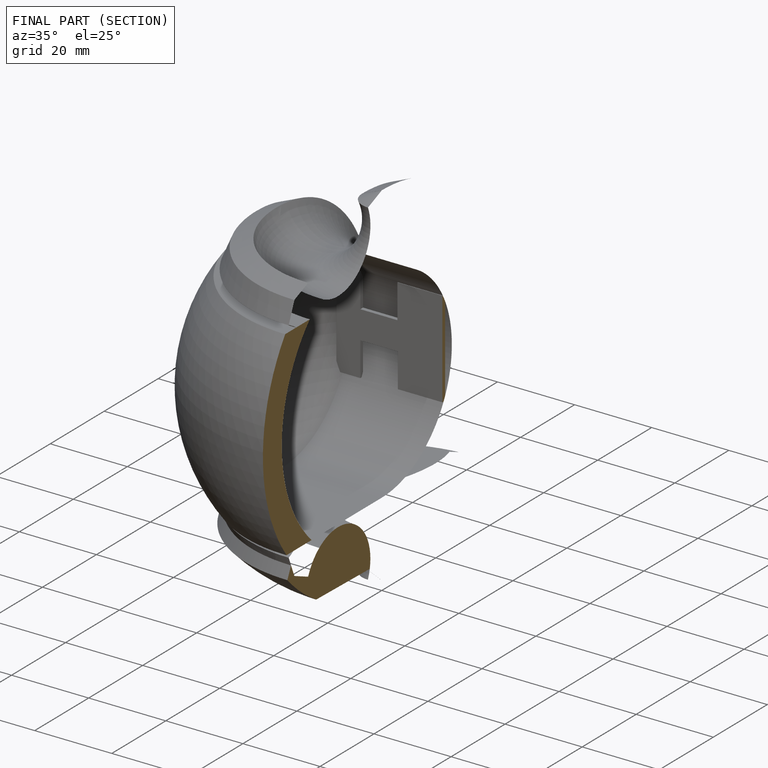
[diagram: finished part — half-section view (interior)]
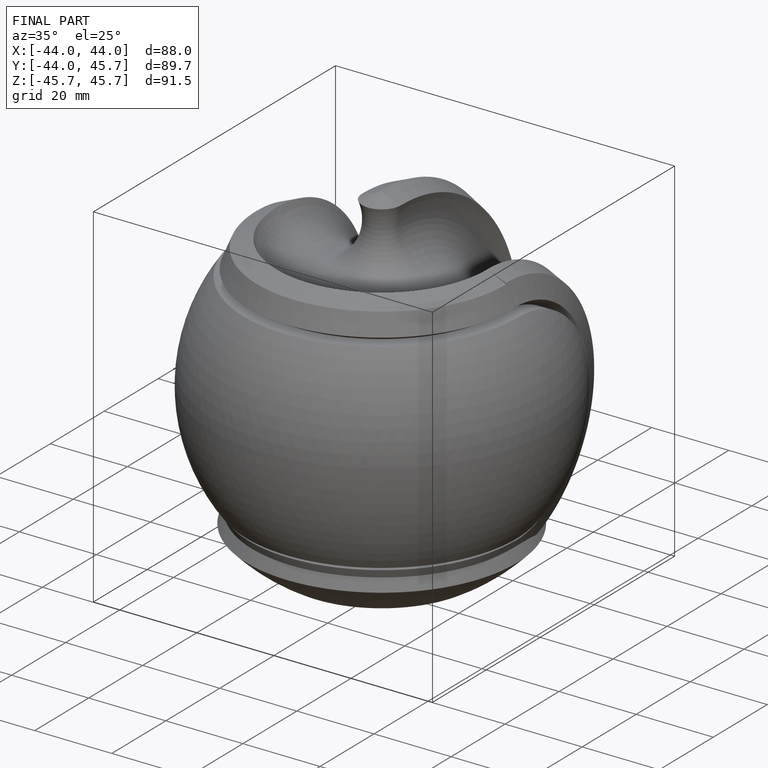
[diagram: finished part — iso view with bounding-box wireframe]
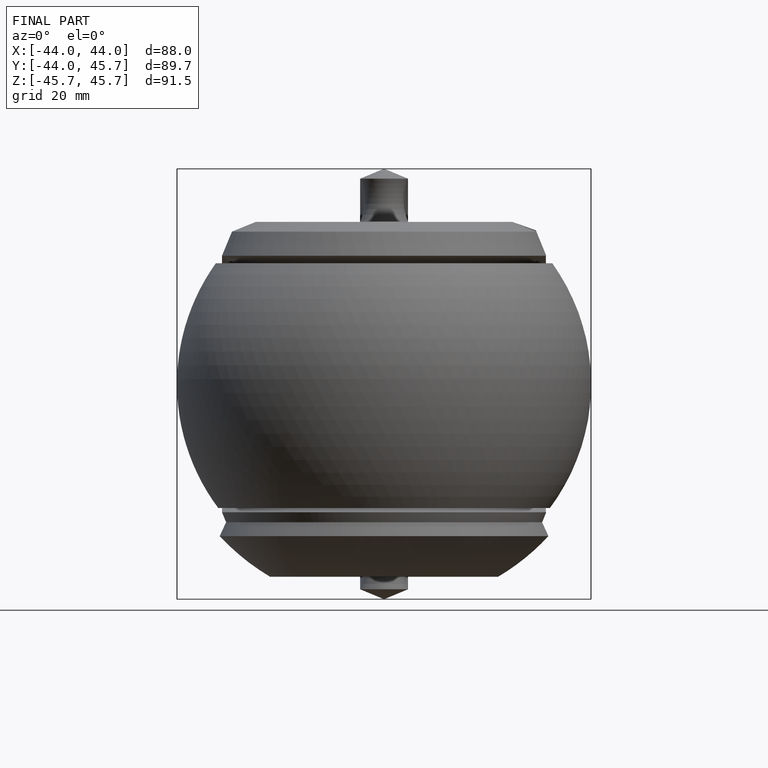
[diagram: finished part — front view with bounding-box wireframe]
